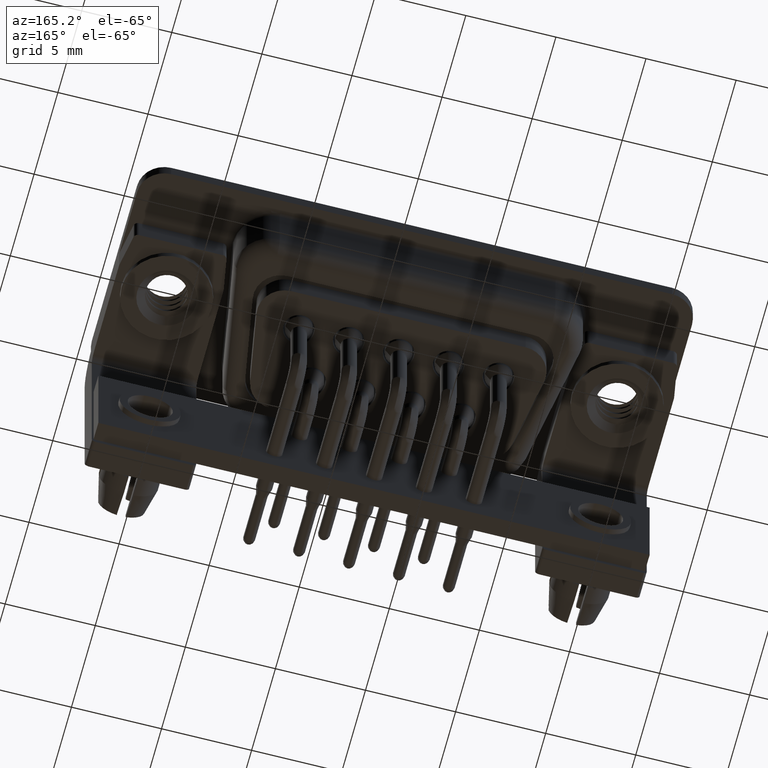
[diagram: clean part render]
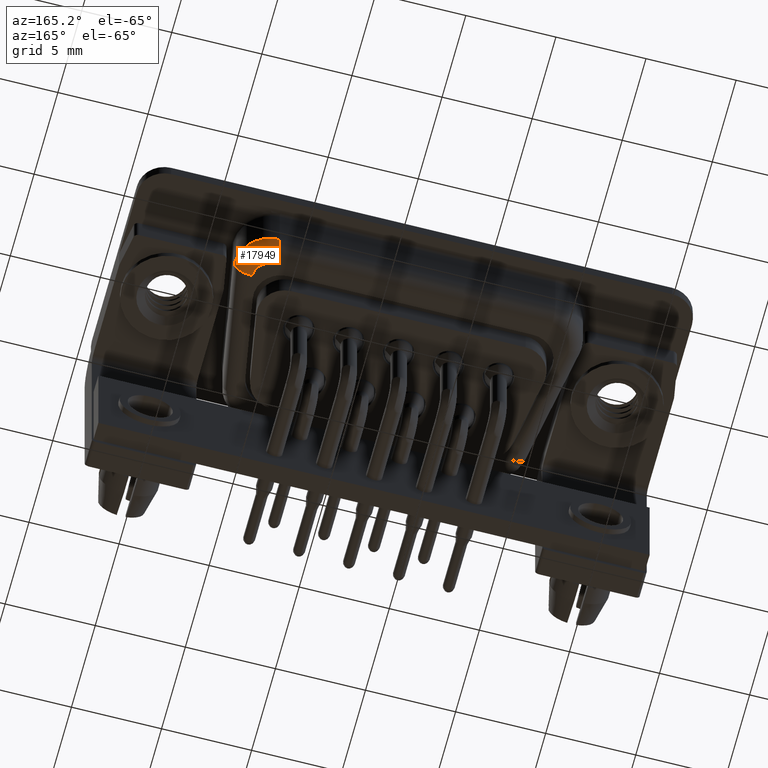
[diagram: same view with one face highlighted and labeled with its STEP entity id]
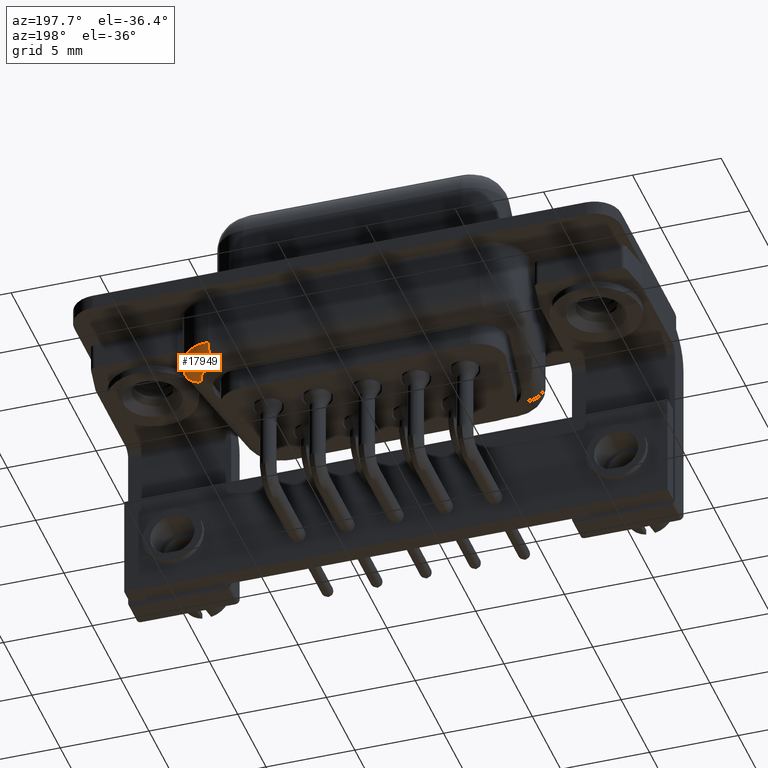
[diagram: same view with one face highlighted and labeled with its STEP entity id]
A machine part, auxiliary view. The second image highlights one B-rep face of the part: STEP entity #17949.
A second angle (auxiliary view) of the same face is appended — the face is thin or edge-on in the first view.
In plain terms, the highlighted toroidal blend (fillet) surface has major radius 1 mm and minor (blend) radius 1 mm.
Its self-contained STEP definition (entity closure, byte-faithful):
#506 = AXIS2_PLACEMENT_3D ( 'NONE', #3778, #14046, #5259 ) ;
#569 = DIRECTION ( 'NONE',  ( 1.000000000000000000, 0.0000000000000000000, 0.0000000000000000000 ) ) ;
#1382 = DIRECTION ( 'NONE',  ( -0.0000000000000000000, 0.0000000000000000000, -1.000000000000000000 ) ) ;
#1603 = DIRECTION ( 'NONE',  ( 0.0000000000000000000, -1.000000000000000000, -0.0000000000000000000 ) ) ;
#1650 = ORIENTED_EDGE ( 'NONE', *, *, #15218, .F. ) ;
#2294 = CARTESIAN_POINT ( 'NONE',  ( 20.15000000000000200, 3.400000000000003900, -3.499999999999999600 ) ) ;
#2523 = CARTESIAN_POINT ( 'NONE',  ( 20.15000000000000200, 5.400000000000004800, -3.499999999999999600 ) ) ;
#2933 = CIRCLE ( 'NONE', #8226, 1.000000000000000900 ) ;
#3778 = CARTESIAN_POINT ( 'NONE',  ( 20.15000000000000200, 4.400000000000003900, -3.499999999999999600 ) ) ;
#3784 = DIRECTION ( 'NONE',  ( 1.000000000000000000, 0.0000000000000000000, 0.0000000000000000000 ) ) ;
#4595 = CARTESIAN_POINT ( 'NONE',  ( 22.15000000000000200, 3.400000000000003900, -3.499999999999999600 ) ) ;
#5259 = DIRECTION ( 'NONE',  ( 0.0000000000000000000, 0.0000000000000000000, 1.000000000000000000 ) ) ;
#5714 = ORIENTED_EDGE ( 'NONE', *, *, #11533, .F. ) ;
#6331 = AXIS2_PLACEMENT_3D ( 'NONE', #10459, #1603, #11942 ) ;
#6356 = VERTEX_POINT ( 'NONE', #16015 ) ;
#6754 = CARTESIAN_POINT ( 'NONE',  ( 21.15000000000000200, 3.400000000000003900, -4.500000000000000000 ) ) ;
#7618 = CIRCLE ( 'NONE', #506, 1.000000000000000000 ) ;
#8226 = AXIS2_PLACEMENT_3D ( 'NONE', #10224, #1382, #11713 ) ;
#9425 = DIRECTION ( 'NONE',  ( 0.0000000000000000000, -0.0000000000000000000, 1.000000000000000000 ) ) ;
#10224 = CARTESIAN_POINT ( 'NONE',  ( 20.15000000000000200, 3.400000000000003900, -4.500000000000000000 ) ) ;
#10230 = VERTEX_POINT ( 'NONE', #4595 ) ;
#10459 = CARTESIAN_POINT ( 'NONE',  ( 21.15000000000000200, 3.400000000000003900, -3.499999999999999600 ) ) ;
#10832 = CIRCLE ( 'NONE', #15592, 2.000000000000001800 ) ;
#11068 = DIRECTION ( 'NONE',  ( 0.0000000000000000000, -0.0000000000000000000, 1.000000000000000000 ) ) ;
#11148 = TOROIDAL_SURFACE ( 'NONE', #13872, 1.000000000000000000, 1.000000000000000000 ) ;
#11533 = EDGE_CURVE ( 'NONE', #14125, #6356, #7618, .T. ) ;
#11713 = DIRECTION ( 'NONE',  ( 1.000000000000000000, 0.0000000000000000000, 0.0000000000000000000 ) ) ;
#11942 = DIRECTION ( 'NONE',  ( 0.0000000000000000000, 0.0000000000000000000, -1.000000000000000000 ) ) ;
#12309 = EDGE_CURVE ( 'NONE', #12633, #10230, #15642, .T. ) ;
#12352 = ORIENTED_EDGE ( 'NONE', *, *, #16372, .F. ) ;
#12633 = VERTEX_POINT ( 'NONE', #6754 ) ;
#13872 = AXIS2_PLACEMENT_3D ( 'NONE', #2294, #11068, #3784 ) ;
#14046 = DIRECTION ( 'NONE',  ( -1.000000000000000000, 0.0000000000000000000, 0.0000000000000000000 ) ) ;
#14125 = VERTEX_POINT ( 'NONE', #2523 ) ;
#14792 = ORIENTED_EDGE ( 'NONE', *, *, #12309, .F. ) ;
#15218 = EDGE_CURVE ( 'NONE', #10230, #14125, #10832, .T. ) ;
#15592 = AXIS2_PLACEMENT_3D ( 'NONE', #18257, #9425, #569 ) ;
#15642 = CIRCLE ( 'NONE', #6331, 1.000000000000000000 ) ;
#16015 = CARTESIAN_POINT ( 'NONE',  ( 20.15000000000000200, 4.400000000000004800, -4.500000000000000000 ) ) ;
#16372 = EDGE_CURVE ( 'NONE', #6356, #12633, #2933, .T. ) ;
#17497 = EDGE_LOOP ( 'NONE', ( #14792, #12352, #5714, #1650 ) ) ;
#17949 = ADVANCED_FACE ( 'NONE', ( #19011 ), #11148, .T. ) ;
#18257 = CARTESIAN_POINT ( 'NONE',  ( 20.15000000000000200, 3.400000000000003900, -3.499999999999999600 ) ) ;
#19011 = FACE_OUTER_BOUND ( 'NONE', #17497, .T. ) ;